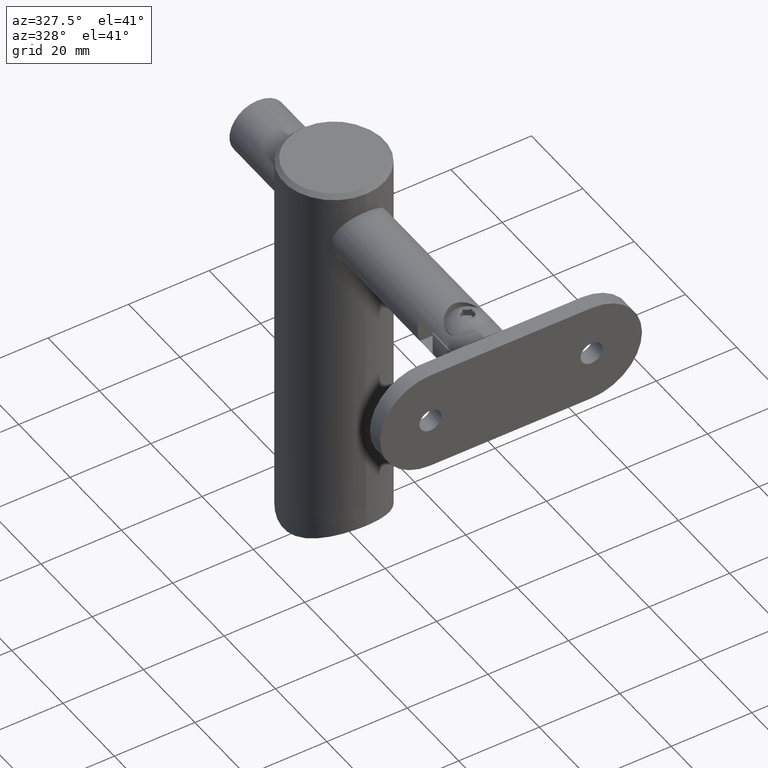
[diagram: clean part render]
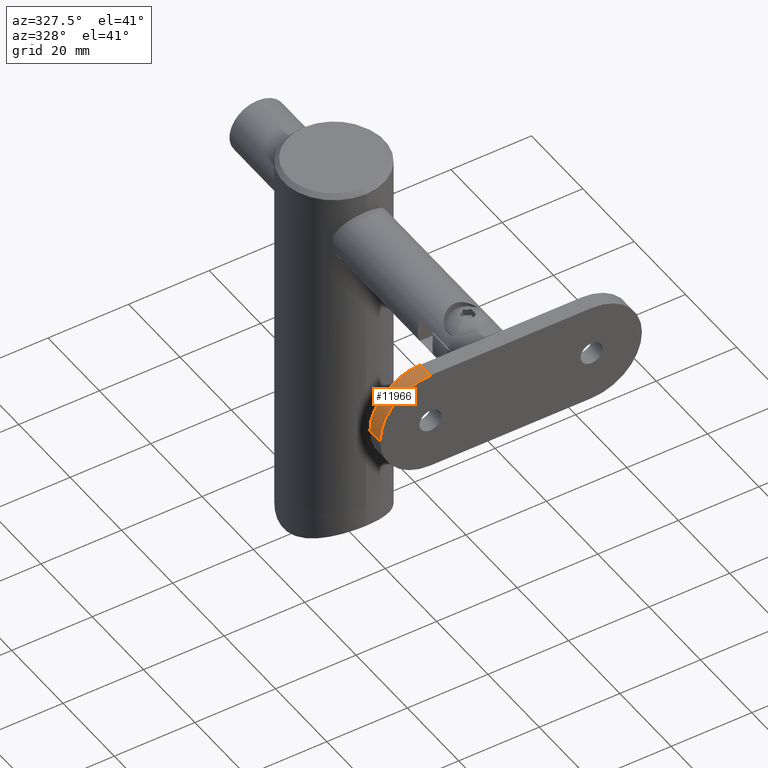
[diagram: same view with one face highlighted and labeled with its STEP entity id]
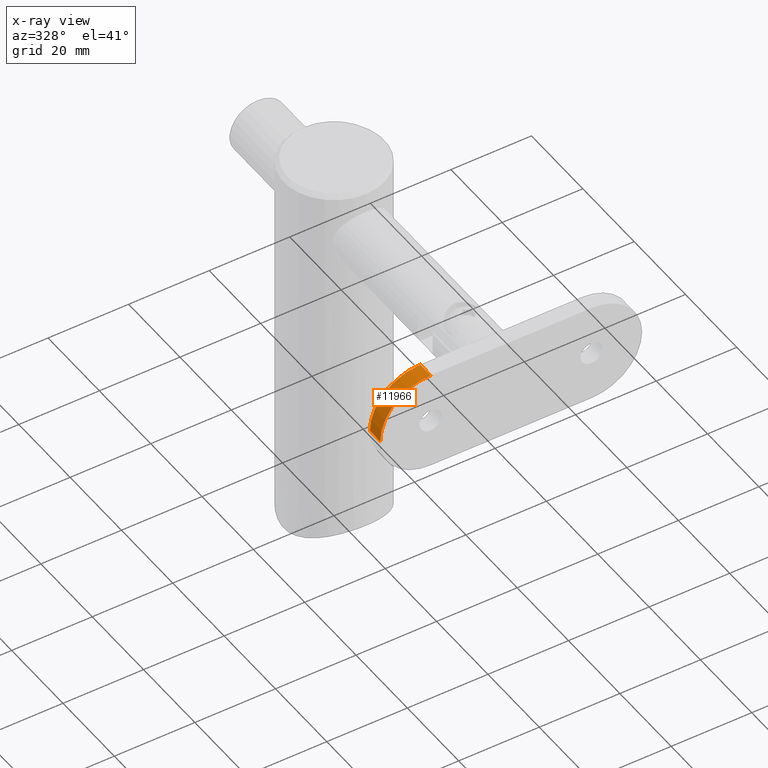
[diagram: x-ray of the same camera — body ghosted, the highlighted face saturated]
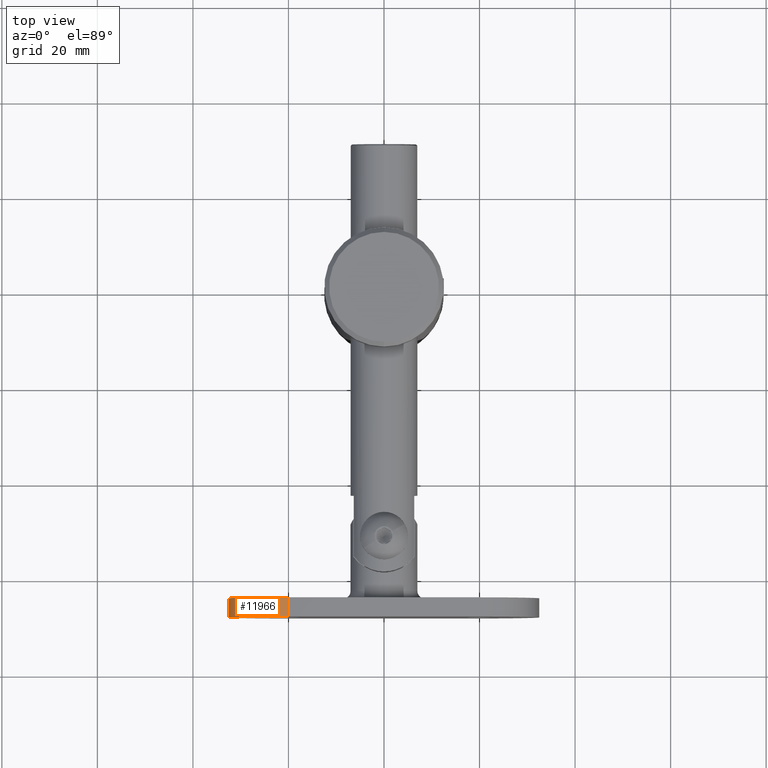
[diagram: same view with one face highlighted and labeled with its STEP entity id]
A machine part, auxiliary view. The second image highlights one B-rep face of the part: STEP entity #11966.
The next image is the same camera in x-ray: the body ghosted, the highlighted face saturated — about 0% of this face is hidden behind the body in this view.
A second angle (top view) of the same face is appended — the face is thin or edge-on in the first view.
In plain terms, the highlighted cylindrical surface (partial cylindrical patch) has radius 12.5 mm, axis along (0, -1, 0).
Its self-contained STEP definition (entity closure, byte-faithful):
#21 = ORIENTED_EDGE ( 'NONE', *, *, #2384, .F. ) ;
#1649 = EDGE_CURVE ( 'NONE', #6553, #8390, #5259, .T. ) ;
#2384 = EDGE_CURVE ( 'NONE', #10723, #6553, #17770, .T. ) ;
#2719 = LINE ( 'NONE', #12029, #14350 ) ;
#3699 = CARTESIAN_POINT ( 'NONE',  ( 0.000000000000000000, 2.000000000000001776, 20.00000000000000000 ) ) ;
#5191 = CARTESIAN_POINT ( 'NONE',  ( 0.000000000000000000, -2.000000000000001776, 32.50000000000000000 ) ) ;
#5259 = CIRCLE ( 'NONE', #5414, 12.50000000000000000 ) ;
#5414 = AXIS2_PLACEMENT_3D ( 'NONE', #3699, #14766, #11725 ) ;
#5744 = CYLINDRICAL_SURFACE ( 'NONE', #8568, 12.50000000000000000 ) ;
#6553 = VERTEX_POINT ( 'NONE', #6701 ) ;
#6701 = CARTESIAN_POINT ( 'NONE',  ( -12.50000000000001066, 2.000000000000001776, 20.00000000000000000 ) ) ;
#7026 = ORIENTED_EDGE ( 'NONE', *, *, #1649, .F. ) ;
#7135 = ORIENTED_EDGE ( 'NONE', *, *, #18021, .F. ) ;
#7743 = CARTESIAN_POINT ( 'NONE',  ( -12.50000000000001066, 2.000000000000001776, 20.00000000000000000 ) ) ;
#8390 = VERTEX_POINT ( 'NONE', #15931 ) ;
#8568 = AXIS2_PLACEMENT_3D ( 'NONE', #19793, #15065, #10302 ) ;
#8969 = FACE_OUTER_BOUND ( 'NONE', #11640, .T. ) ;
#9747 = AXIS2_PLACEMENT_3D ( 'NONE', #16489, #19528, #10118 ) ;
#10118 = DIRECTION ( 'NONE',  ( 0.000000000000000000, 0.000000000000000000, 1.000000000000000000 ) ) ;
#10302 = DIRECTION ( 'NONE',  ( 0.000000000000000000, 0.000000000000000000, 1.000000000000000000 ) ) ;
#10723 = VERTEX_POINT ( 'NONE', #18766 ) ;
#10945 = ORIENTED_EDGE ( 'NONE', *, *, #14308, .T. ) ;
#11640 = EDGE_LOOP ( 'NONE', ( #7026, #21, #7135, #10945 ) ) ;
#11725 = DIRECTION ( 'NONE',  ( 8.881784197001252323E-16, 0.000000000000000000, -1.000000000000000000 ) ) ;
#11856 = CIRCLE ( 'NONE', #9747, 12.50000000000000000 ) ;
#11966 = ADVANCED_FACE ( 'NONE', ( #8969 ), #5744, .T. ) ;
#12029 = CARTESIAN_POINT ( 'NONE',  ( 0.000000000000000000, 2.000000000000001776, 32.50000000000000000 ) ) ;
#13314 = VECTOR ( 'NONE', #18809, 1000.000000000000000 ) ;
#14048 = VERTEX_POINT ( 'NONE', #5191 ) ;
#14308 = EDGE_CURVE ( 'NONE', #14048, #8390, #2719, .T. ) ;
#14350 = VECTOR ( 'NONE', #15221, 1000.000000000000000 ) ;
#14766 = DIRECTION ( 'NONE',  ( -0.000000000000000000, 1.000000000000000000, -0.000000000000000000 ) ) ;
#15065 = DIRECTION ( 'NONE',  ( 0.000000000000000000, 1.000000000000000000, 0.000000000000000000 ) ) ;
#15221 = DIRECTION ( 'NONE',  ( 0.000000000000000000, 1.000000000000000000, 0.000000000000000000 ) ) ;
#15931 = CARTESIAN_POINT ( 'NONE',  ( 0.000000000000000000, 2.000000000000001776, 32.50000000000000000 ) ) ;
#16489 = CARTESIAN_POINT ( 'NONE',  ( 0.000000000000000000, -2.000000000000001776, 20.00000000000000000 ) ) ;
#17770 = LINE ( 'NONE', #7743, #13314 ) ;
#18021 = EDGE_CURVE ( 'NONE', #14048, #10723, #11856, .T. ) ;
#18766 = CARTESIAN_POINT ( 'NONE',  ( -12.50000000000001066, -2.000000000000001776, 20.00000000000000000 ) ) ;
#18809 = DIRECTION ( 'NONE',  ( -0.000000000000000000, 1.000000000000000000, -0.000000000000000000 ) ) ;
#19528 = DIRECTION ( 'NONE',  ( -0.000000000000000000, -1.000000000000000000, -0.000000000000000000 ) ) ;
#19793 = CARTESIAN_POINT ( 'NONE',  ( 0.000000000000000000, 0.000000000000000000, 20.00000000000000000 ) ) ;